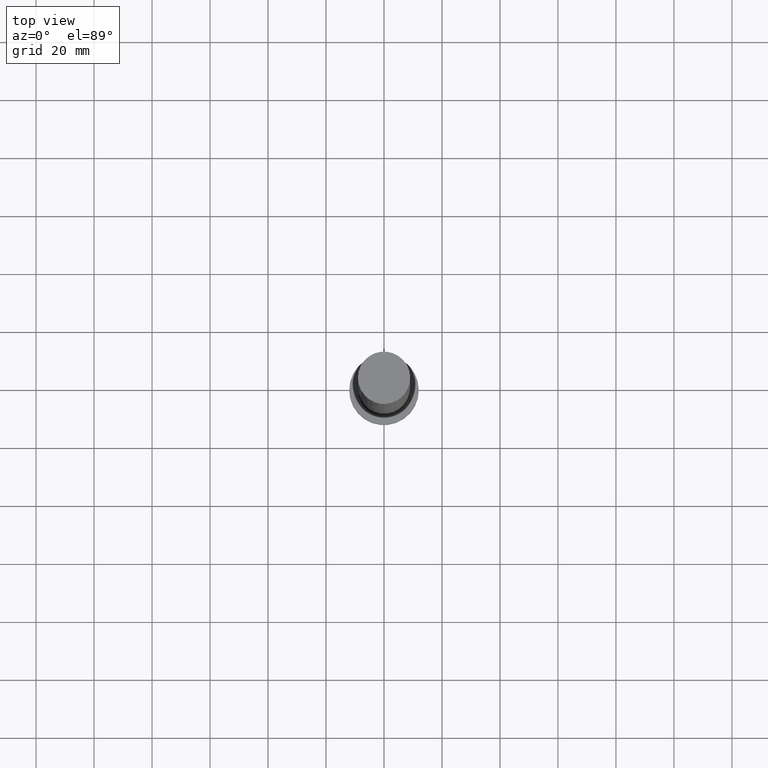
[diagram: clean part render]
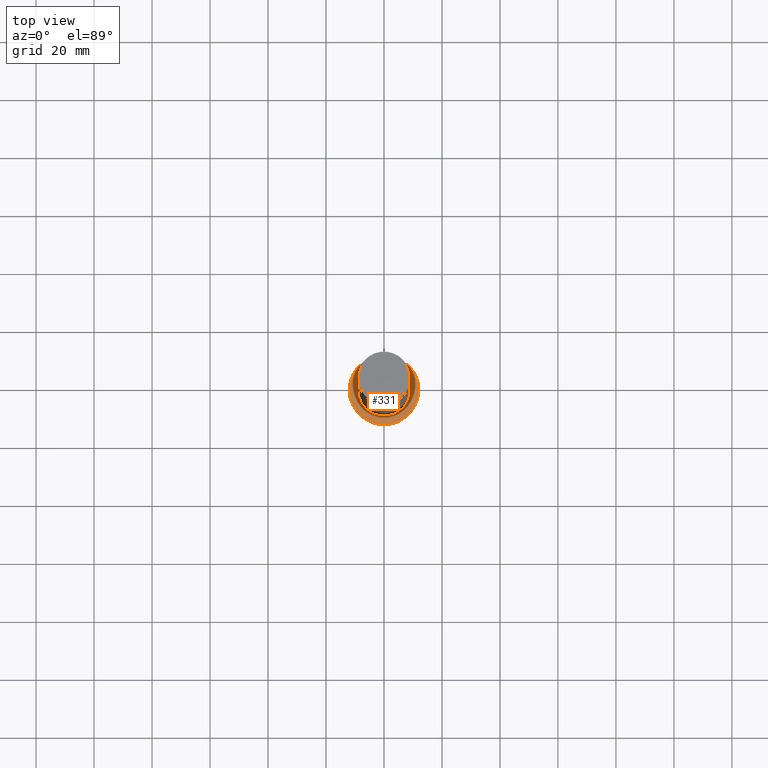
[diagram: same view with one face highlighted and labeled with its STEP entity id]
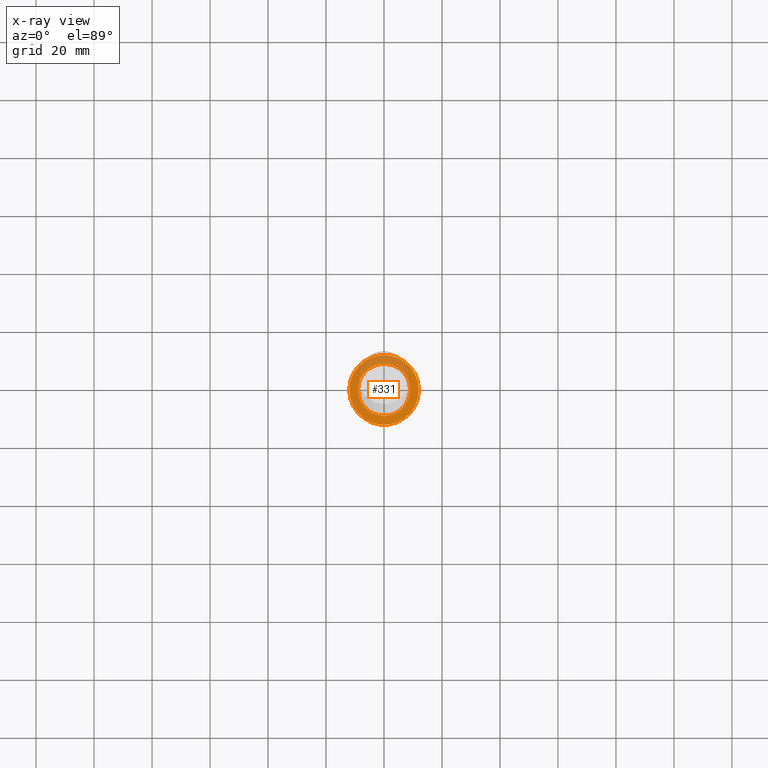
[diagram: x-ray of the same camera — body ghosted, the highlighted face saturated]
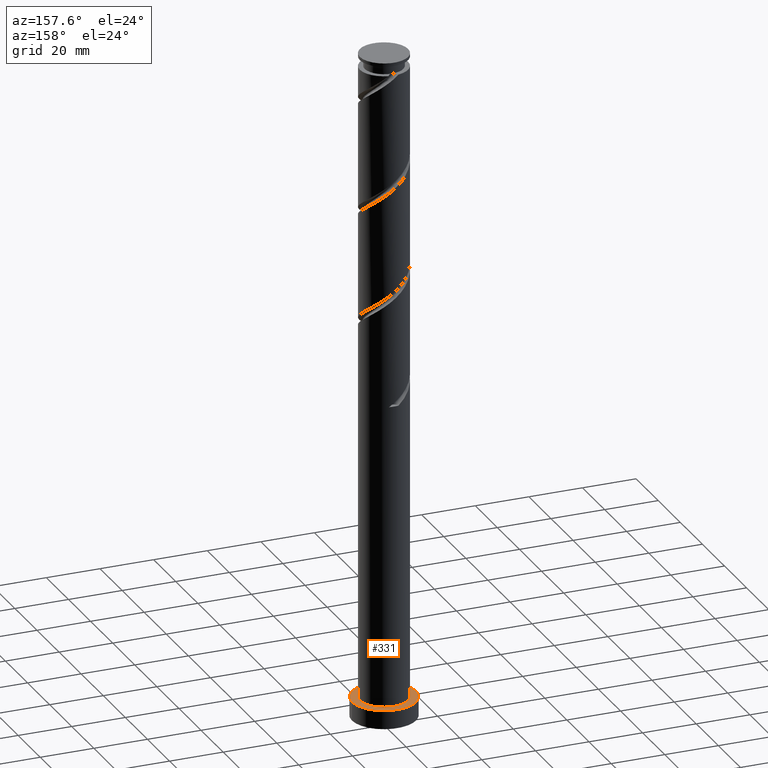
[diagram: same view with one face highlighted and labeled with its STEP entity id]
A machine part, top view. The second image highlights one B-rep face of the part: STEP entity #331.
The next image is the same camera in x-ray: the body ghosted, the highlighted face saturated — about 32% of this face is hidden behind the body in this view.
A second angle (auxiliary view) of the same face is appended — the face is thin or edge-on in the first view.
In plain terms, the highlighted planar face has unit normal (0, 0, 1).
Its self-contained STEP definition (entity closure, byte-faithful):
#48 = FACE_OUTER_BOUND ( 'NONE', #490, .T. ) ;
#116 = AXIS2_PLACEMENT_3D ( 'NONE', #1575, #1311, #166 ) ;
#138 = EDGE_CURVE ( 'NONE', #555, #992, #302, .T. ) ;
#139 = DIRECTION ( 'NONE',  ( 1.000000000000000000, 0.000000000000000000, 0.000000000000000000 ) ) ;
#166 = DIRECTION ( 'NONE',  ( 1.000000000000000000, 0.000000000000000000, 0.000000000000000000 ) ) ;
#180 = VERTEX_POINT ( 'NONE', #1171 ) ;
#184 = CARTESIAN_POINT ( 'NONE',  ( 12.00000000000000178, 1.469576158976824144E-15, 7.000000000000000000 ) ) ;
#246 = EDGE_CURVE ( 'NONE', #992, #555, #1504, .T. ) ;
#302 = CIRCLE ( 'NONE', #116, 12.00000000000000178 ) ;
#331 = ADVANCED_FACE ( 'NONE', ( #1081, #48 ), #503, .T. ) ;
#398 = CARTESIAN_POINT ( 'NONE',  ( -12.00000000000000178, 0.000000000000000000, 7.000000000000000000 ) ) ;
#403 = ORIENTED_EDGE ( 'NONE', *, *, #1015, .F. ) ;
#487 = ORIENTED_EDGE ( 'NONE', *, *, #246, .T. ) ;
#490 = EDGE_LOOP ( 'NONE', ( #487, #1686 ) ) ;
#503 = PLANE ( 'NONE',  #845 ) ;
#555 = VERTEX_POINT ( 'NONE', #184 ) ;
#640 = DIRECTION ( 'NONE',  ( 1.000000000000000000, 0.000000000000000000, -0.000000000000000000 ) ) ;
#660 = EDGE_LOOP ( 'NONE', ( #403, #708 ) ) ;
#708 = ORIENTED_EDGE ( 'NONE', *, *, #1087, .F. ) ;
#765 = DIRECTION ( 'NONE',  ( 0.000000000000000000, 0.000000000000000000, 1.000000000000000000 ) ) ;
#845 = AXIS2_PLACEMENT_3D ( 'NONE', #1753, #918, #640 ) ;
#856 = CARTESIAN_POINT ( 'NONE',  ( 9.000000000000000000, 1.102182119232617714E-15, 7.000000000000000000 ) ) ;
#900 = CARTESIAN_POINT ( 'NONE',  ( 0.000000000000000000, 0.000000000000000000, 7.000000000000000000 ) ) ;
#918 = DIRECTION ( 'NONE',  ( 0.000000000000000000, 0.000000000000000000, 1.000000000000000000 ) ) ;
#988 = DIRECTION ( 'NONE',  ( 0.000000000000000000, 0.000000000000000000, 1.000000000000000000 ) ) ;
#992 = VERTEX_POINT ( 'NONE', #398 ) ;
#1015 = EDGE_CURVE ( 'NONE', #180, #1542, #1246, .T. ) ;
#1041 = AXIS2_PLACEMENT_3D ( 'NONE', #1188, #1439, #139 ) ;
#1081 = FACE_BOUND ( 'NONE', #660, .T. ) ;
#1087 = EDGE_CURVE ( 'NONE', #1542, #180, #1789, .T. ) ;
#1134 = CARTESIAN_POINT ( 'NONE',  ( 0.000000000000000000, 0.000000000000000000, 7.000000000000000000 ) ) ;
#1171 = CARTESIAN_POINT ( 'NONE',  ( -9.000000000000000000, 0.000000000000000000, 7.000000000000000000 ) ) ;
#1188 = CARTESIAN_POINT ( 'NONE',  ( 0.000000000000000000, 0.000000000000000000, 7.000000000000000000 ) ) ;
#1246 = CIRCLE ( 'NONE', #1535, 9.000000000000000000 ) ;
#1311 = DIRECTION ( 'NONE',  ( 0.000000000000000000, 0.000000000000000000, 1.000000000000000000 ) ) ;
#1358 = DIRECTION ( 'NONE',  ( 1.000000000000000000, 0.000000000000000000, 0.000000000000000000 ) ) ;
#1439 = DIRECTION ( 'NONE',  ( 0.000000000000000000, 0.000000000000000000, 1.000000000000000000 ) ) ;
#1480 = DIRECTION ( 'NONE',  ( 1.000000000000000000, 0.000000000000000000, 0.000000000000000000 ) ) ;
#1504 = CIRCLE ( 'NONE', #1041, 12.00000000000000178 ) ;
#1535 = AXIS2_PLACEMENT_3D ( 'NONE', #1134, #988, #1358 ) ;
#1542 = VERTEX_POINT ( 'NONE', #856 ) ;
#1575 = CARTESIAN_POINT ( 'NONE',  ( 0.000000000000000000, 0.000000000000000000, 7.000000000000000000 ) ) ;
#1686 = ORIENTED_EDGE ( 'NONE', *, *, #138, .T. ) ;
#1710 = AXIS2_PLACEMENT_3D ( 'NONE', #900, #765, #1480 ) ;
#1753 = CARTESIAN_POINT ( 'NONE',  ( 0.000000000000000000, 0.000000000000000000, 7.000000000000000000 ) ) ;
#1789 = CIRCLE ( 'NONE', #1710, 9.000000000000000000 ) ;